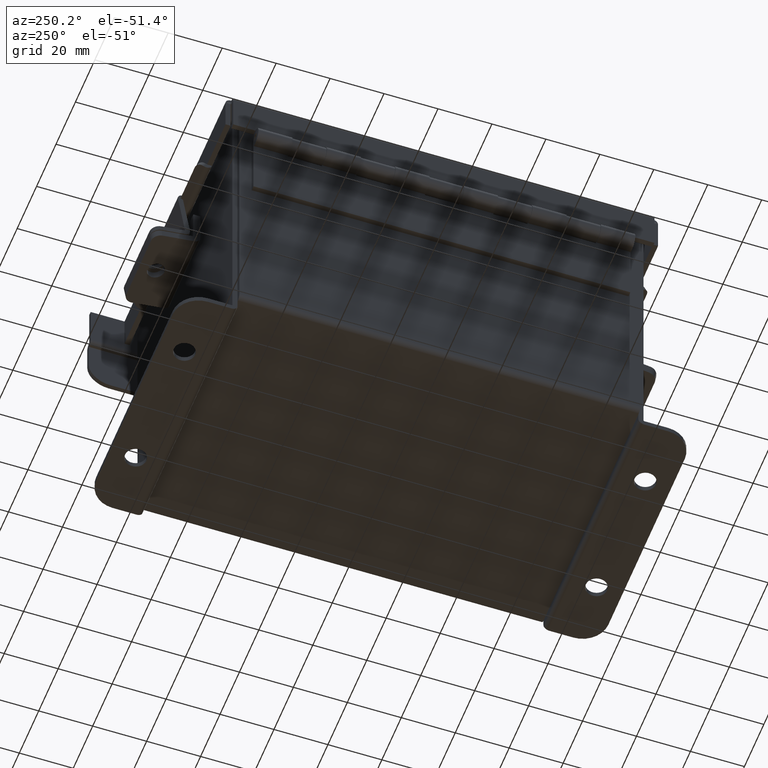
[diagram: clean part render]
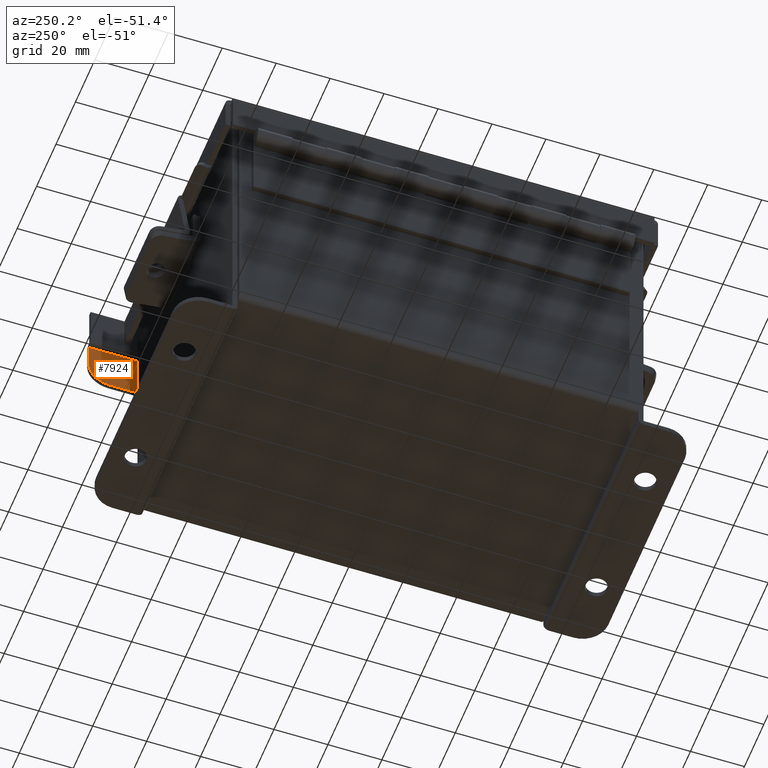
[diagram: same view with one face highlighted and labeled with its STEP entity id]
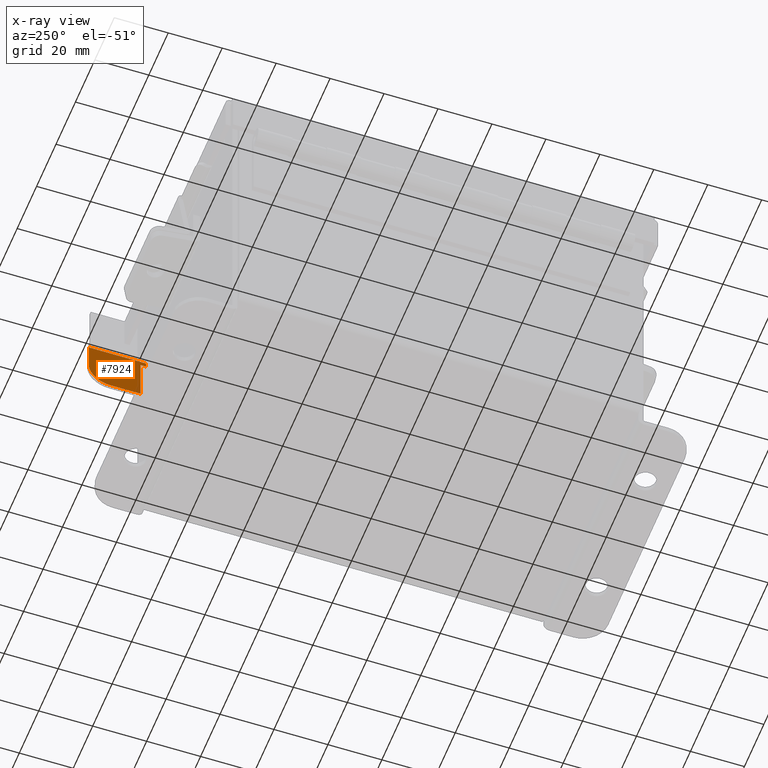
[diagram: x-ray of the same camera — body ghosted, the highlighted face saturated]
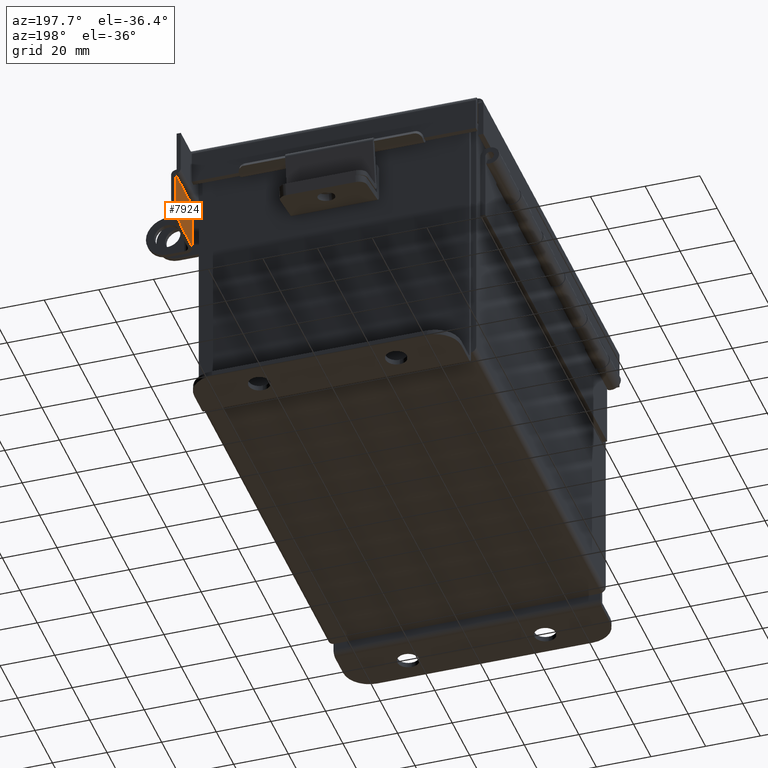
[diagram: same view with one face highlighted and labeled with its STEP entity id]
A machine part, auxiliary view. The second image highlights one B-rep face of the part: STEP entity #7924.
The next image is the same camera in x-ray: the body ghosted, the highlighted face saturated — about 2% of this face is hidden behind the body in this view.
A second angle (auxiliary view) of the same face is appended — the face is thin or edge-on in the first view.
In plain terms, the highlighted planar face has unit normal (1, -0, -0).
Its self-contained STEP definition (entity closure, byte-faithful):
#42 = CARTESIAN_POINT ( 'NONE',  ( 0.08000000000000460900, -0.05999999999998133200, 3.451464258401257400 ) ) ;
#108 = CARTESIAN_POINT ( 'NONE',  ( 0.08000000000000460900, -0.05999999999999881100, 2.821464258401261500 ) ) ;
#339 = DIRECTION ( 'NONE',  ( -1.000000000000000000, -4.465433741390200800E-030, -6.301026480452831800E-029 ) ) ;
#807 = EDGE_CURVE ( 'NONE', #7133, #12679, #8996, .T. ) ;
#817 = VERTEX_POINT ( 'NONE', #2822 ) ;
#982 = VECTOR ( 'NONE', #339, 39.37007874015748100 ) ;
#1087 = ORIENTED_EDGE ( 'NONE', *, *, #1349, .T. ) ;
#1174 = DIRECTION ( 'NONE',  ( -6.293630909466360100E-029, 7.888609052210086500E-031, -1.000000000000000000 ) ) ;
#1349 = EDGE_CURVE ( 'NONE', #12679, #817, #6804, .T. ) ;
#1405 = DIRECTION ( 'NONE',  ( -1.000000000000000000, -4.465433741390200800E-030, -6.301026480452831800E-029 ) ) ;
#1455 = ORIENTED_EDGE ( 'NONE', *, *, #807, .T. ) ;
#1478 = EDGE_CURVE ( 'NONE', #7133, #3602, #13721, .T. ) ;
#1903 = DIRECTION ( 'NONE',  ( -6.301026480452808300E-029, 1.577721810442017700E-030, -1.000000000000000000 ) ) ;
#1970 = DIRECTION ( 'NONE',  ( 3.972395675626679500E-030, 1.000000000000000000, 7.888609052210086500E-031 ) ) ;
#2339 = ORIENTED_EDGE ( 'NONE', *, *, #1478, .F. ) ;
#2699 = VERTEX_POINT ( 'NONE', #108 ) ;
#2822 = CARTESIAN_POINT ( 'NONE',  ( 0.08000000000000460900, -0.05999999999998133200, 3.451464258401257400 ) ) ;
#3437 = EDGE_CURVE ( 'NONE', #11943, #2699, #8923, .T. ) ;
#3511 = VECTOR ( 'NONE', #4625, 39.37007874015748100 ) ;
#3602 = VERTEX_POINT ( 'NONE', #6954 ) ;
#3629 = CARTESIAN_POINT ( 'NONE',  ( 0.8370000000000047400, -0.05999999999998133200, 2.751442129839074500 ) ) ;
#3810 = CARTESIAN_POINT ( 'NONE',  ( 0.8370000000000047400, -0.05999999999998133200, 3.451464258401257400 ) ) ;
#4087 = LINE ( 'NONE', #42, #5954 ) ;
#4220 = ORIENTED_EDGE ( 'NONE', *, *, #10658, .T. ) ;
#4304 = AXIS2_PLACEMENT_3D ( 'NONE', #12579, #6120, #13661 ) ;
#4625 = DIRECTION ( 'NONE',  ( 1.000000000000000000, 5.301399556794047800E-030, -6.829619984160645600E-015 ) ) ;
#4635 = FACE_OUTER_BOUND ( 'NONE', #9703, .T. ) ;
#4920 = CARTESIAN_POINT ( 'NONE',  ( 0.8370000000000047400, -0.05999999999998133200, 3.136464258401260500 ) ) ;
#5356 = EDGE_CURVE ( 'NONE', #3602, #11502, #7534, .T. ) ;
#5745 = ORIENTED_EDGE ( 'NONE', *, *, #9049, .T. ) ;
#5746 = ORIENTED_EDGE ( 'NONE', *, *, #3437, .F. ) ;
#5954 = VECTOR ( 'NONE', #1174, 39.37007874015748100 ) ;
#6008 = CARTESIAN_POINT ( 'NONE',  ( 0.5220000000000050200, -0.05999999999998133200, 3.451464258401257400 ) ) ;
#6120 = DIRECTION ( 'NONE',  ( -3.972395675626679500E-030, -1.000000000000000000, -1.577721810442017700E-030 ) ) ;
#6804 = LINE ( 'NONE', #10166, #982 ) ;
#6954 = CARTESIAN_POINT ( 'NONE',  ( 0.8370000000000047400, -0.05999999999998133200, 2.751442129839074500 ) ) ;
#7133 = VERTEX_POINT ( 'NONE', #4920 ) ;
#7534 = LINE ( 'NONE', #3629, #10432 ) ;
#7659 = LINE ( 'NONE', #9497, #10224 ) ;
#7665 = AXIS2_PLACEMENT_3D ( 'NONE', #8483, #1970, #9569 ) ;
#7924 = ADVANCED_FACE ( 'NONE', ( #4635 ), #13858, .F. ) ;
#8060 = CARTESIAN_POINT ( 'NONE',  ( 4.917326388595674200E-015, -0.05999999999998133200, 2.751442129839074500 ) ) ;
#8483 = CARTESIAN_POINT ( 'NONE',  ( 0.8370000000000047400, -0.05999999999998133200, 3.451464258401257400 ) ) ;
#8923 = LINE ( 'NONE', #11086, #3511 ) ;
#8996 = CIRCLE ( 'NONE', #4304, 0.3150000000000014500 ) ;
#9049 = EDGE_CURVE ( 'NONE', #11943, #11502, #7659, .T. ) ;
#9497 = CARTESIAN_POINT ( 'NONE',  ( 4.917326388595674200E-015, -0.05999999999998133200, 3.451464258401257400 ) ) ;
#9569 = DIRECTION ( 'NONE',  ( 6.293630909466360100E-029, -7.888609052210086500E-031, 1.000000000000000000 ) ) ;
#9703 = EDGE_LOOP ( 'NONE', ( #2339, #1455, #1087, #4220, #5746, #5745, #11209 ) ) ;
#10166 = CARTESIAN_POINT ( 'NONE',  ( 0.8370000000000047400, -0.05999999999998133200, 3.451464258401257400 ) ) ;
#10224 = VECTOR ( 'NONE', #1903, 39.37007874015748100 ) ;
#10307 = DIRECTION ( 'NONE',  ( -6.301026480452808300E-029, 1.577721810442017700E-030, -1.000000000000000000 ) ) ;
#10432 = VECTOR ( 'NONE', #1405, 39.37007874015748100 ) ;
#10658 = EDGE_CURVE ( 'NONE', #817, #2699, #4087, .T. ) ;
#11086 = CARTESIAN_POINT ( 'NONE',  ( 0.8370000000000004100, -0.05999999999998133200, 2.821464258401254800 ) ) ;
#11209 = ORIENTED_EDGE ( 'NONE', *, *, #5356, .F. ) ;
#11502 = VERTEX_POINT ( 'NONE', #8060 ) ;
#11943 = VERTEX_POINT ( 'NONE', #12298 ) ;
#12298 = CARTESIAN_POINT ( 'NONE',  ( 4.917326388595674200E-015, -0.05999999999999881100, 2.821464258401261500 ) ) ;
#12579 = CARTESIAN_POINT ( 'NONE',  ( 0.5220000000000050200, -0.05999999999998133200, 3.136464258401260500 ) ) ;
#12679 = VERTEX_POINT ( 'NONE', #6008 ) ;
#13371 = VECTOR ( 'NONE', #10307, 39.37007874015748100 ) ;
#13661 = DIRECTION ( 'NONE',  ( 0.0000000000000000000, 0.0000000000000000000, 1.000000000000000000 ) ) ;
#13721 = LINE ( 'NONE', #3810, #13371 ) ;
#13858 = PLANE ( 'NONE',  #7665 ) ;